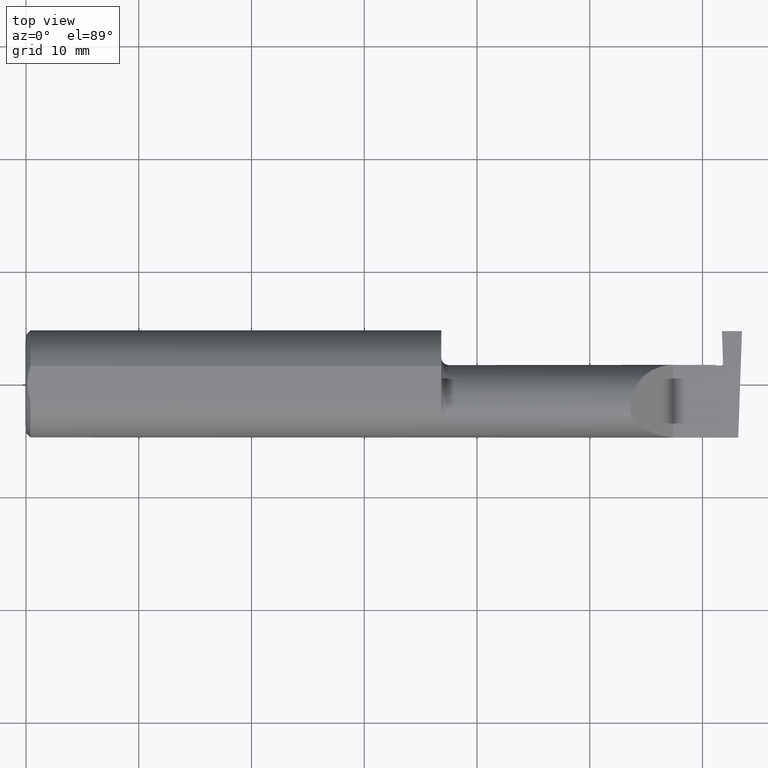
[diagram: clean part render]
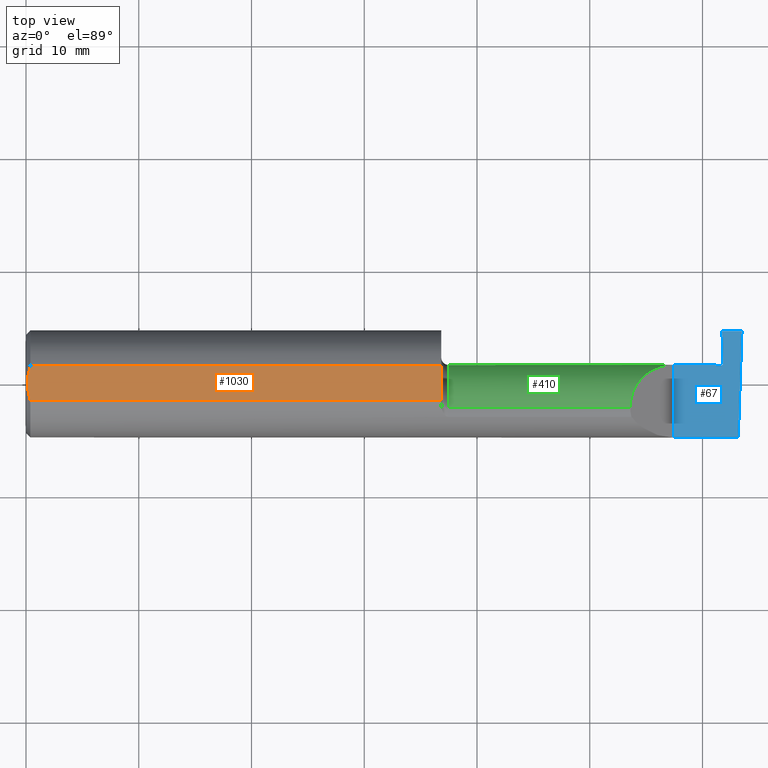
[diagram: same view with three faces highlighted in distinct colors, each labeled with its STEP entity id]
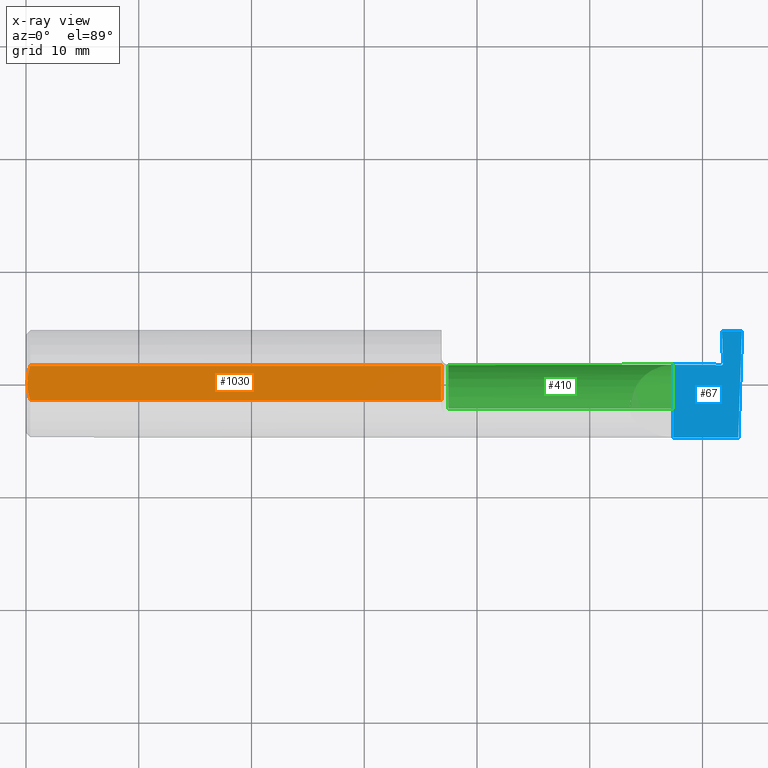
[diagram: x-ray of the same camera — body ghosted, the three highlighted faces saturated]
A machine part, top view with three faces highlighted in distinct colors.
The next image is the same camera in x-ray (body ghosted, the three faces saturated) — at least one of them is partly hidden behind the body in this view.
Their STEP definitions:

[orange] entity #1030 — the highlighted planar face has unit normal (0, -0, 1).
#24 = CARTESIAN_POINT ( 'NONE',  ( 0.009318557230853204490, -0.04061090184993776386, 0.1773499999999999799 ) ) ;
#25 = ORIENTED_EDGE ( 'NONE', *, *, #952, .T. ) ;
#38 = PLANE ( 'NONE',  #146 ) ;
#85 = CARTESIAN_POINT ( 'NONE',  ( 0.005896899252109314912, -0.02043863390046160924, 0.1773500000000000354 ) ) ;
#99 = B_SPLINE_CURVE_WITH_KNOTS ( 'NONE', 3,
 ( #615, #537, #462, #781, #701, #742 ),
 .UNSPECIFIED., .F., .F.,
 ( 4, 2, 4 ),
 ( 0.004207325536406422359, 0.004979129323161655095, 0.005750933109916887831 ),
 .UNSPECIFIED. ) ;
#103 = VERTEX_POINT ( 'NONE', #624 ) ;
#144 = VECTOR ( 'NONE', #442, 39.37007874015748143 ) ;
#146 = AXIS2_PLACEMENT_3D ( 'NONE', #458, #773, #358 ) ;
#179 = ORIENTED_EDGE ( 'NONE', *, *, #326, .T. ) ;
#185 = EDGE_CURVE ( 'NONE', #668, #869, #372, .T. ) ;
#203 = EDGE_CURVE ( 'NONE', #103, #323, #99, .T. ) ;
#222 = ORIENTED_EDGE ( 'NONE', *, *, #203, .T. ) ;
#283 = ORIENTED_EDGE ( 'NONE', *, *, #185, .T. ) ;
#294 = DIRECTION ( 'NONE',  ( 1.000000000000000000, 0.000000000000000000, 0.000000000000000000 ) ) ;
#323 = VERTEX_POINT ( 'NONE', #769 ) ;
#326 = EDGE_CURVE ( 'NONE', #869, #782, #776, .T. ) ;
#358 = DIRECTION ( 'NONE',  ( 1.000000000000000000, 0.000000000000000000, -0.000000000000000000 ) ) ;
#372 = LINE ( 'NONE', #695, #818 ) ;
#442 = DIRECTION ( 'NONE',  ( -0.000000000000000000, 1.000000000000000000, 0.000000000000000000 ) ) ;
#458 = CARTESIAN_POINT ( 'NONE',  ( 2.500000000000000000, -0.1873500000000000165, 0.1773499999999999799 ) ) ;
#460 = DIRECTION ( 'NONE',  ( -1.000000000000000000, -0.000000000000000000, -0.000000000000000000 ) ) ;
#462 = CARTESIAN_POINT ( 'NONE',  ( 0.009346310357820472939, 0.04072930668827419443, 0.1773500000000000354 ) ) ;
#507 = CARTESIAN_POINT ( 'NONE',  ( 1.450000000000000178, -0.06039039658753699025, 0.1773499999999999799 ) ) ;
#537 = CARTESIAN_POINT ( 'NONE',  ( 0.01185291896084217714, 0.05062716160312498437, 0.1773499999999999521 ) ) ;
#584 = CARTESIAN_POINT ( 'NONE',  ( 0.01186375298701897348, -0.05066077215909271098, 0.1773499999999999799 ) ) ;
#615 = CARTESIAN_POINT ( 'NONE',  ( 0.01499999999999756042, 0.06039039658754215278, 0.1773499999999999799 ) ) ;
#621 = ORIENTED_EDGE ( 'NONE', *, *, #741, .T. ) ;
#624 = CARTESIAN_POINT ( 'NONE',  ( 0.01499999999999756042, 0.06039039658754215278, 0.1773499999999999799 ) ) ;
#631 = VECTOR ( 'NONE', #460, 39.37007874015748143 ) ;
#664 = CARTESIAN_POINT ( 'NONE',  ( 0.004999999999999835305, 2.941982542510190671E-17, 0.1773499999999999799 ) ) ;
#668 = VERTEX_POINT ( 'NONE', #693 ) ;
#691 = FACE_OUTER_BOUND ( 'NONE', #816, .T. ) ;
#693 = CARTESIAN_POINT ( 'NONE',  ( 0.01499999999999999944, -0.06039039658753697637, 0.1773499999999999799 ) ) ;
#695 = CARTESIAN_POINT ( 'NONE',  ( 0.000000000000000000, -0.06039039658753697637, 0.1773499999999999799 ) ) ;
#701 = CARTESIAN_POINT ( 'NONE',  ( 0.004999999999999839642, 0.01027925662263861305, 0.1773499999999999799 ) ) ;
#741 = EDGE_CURVE ( 'NONE', #782, #103, #922, .T. ) ;
#742 = CARTESIAN_POINT ( 'NONE',  ( 0.004999999999999835305, 2.941982542510190671E-17, 0.1773499999999999799 ) ) ;
#747 = CARTESIAN_POINT ( 'NONE',  ( 0.004999999999999833571, -0.01026662907944655458, 0.1773499999999999521 ) ) ;
#769 = CARTESIAN_POINT ( 'NONE',  ( 0.004999999999999835305, 2.941982542510190671E-17, 0.1773499999999999799 ) ) ;
#773 = DIRECTION ( 'NONE',  ( 0.000000000000000000, -0.000000000000000000, 1.000000000000000000 ) ) ;
#776 = LINE ( 'NONE', #927, #144 ) ;
#781 = CARTESIAN_POINT ( 'NONE',  ( 0.005916828623699125177, 0.02060071390057613763, 0.1773499999999999799 ) ) ;
#782 = VERTEX_POINT ( 'NONE', #857 ) ;
#816 = EDGE_LOOP ( 'NONE', ( #283, #179, #621, #222, #25 ) ) ;
#818 = VECTOR ( 'NONE', #294, 39.37007874015748143 ) ;
#846 = B_SPLINE_CURVE_WITH_KNOTS ( 'NONE', 3,
 ( #664, #747, #85, #24, #584, #907 ),
 .UNSPECIFIED., .F., .F.,
 ( 4, 2, 4 ),
 ( 0.005750933109916887831, 0.006521788775031543001, 0.007292644440146199038 ),
 .UNSPECIFIED. ) ;
#857 = CARTESIAN_POINT ( 'NONE',  ( 1.450000000000000178, 0.06039039658754216666, 0.1773499999999999799 ) ) ;
#869 = VERTEX_POINT ( 'NONE', #507 ) ;
#907 = CARTESIAN_POINT ( 'NONE',  ( 0.01499999999999999944, -0.06039039658753697637, 0.1773499999999999799 ) ) ;
#922 = LINE ( 'NONE', #1003, #631 ) ;
#927 = CARTESIAN_POINT ( 'NONE',  ( 1.450000000000000178, -0.1873500000000000165, 0.1773499999999999799 ) ) ;
#952 = EDGE_CURVE ( 'NONE', #323, #668, #846, .T. ) ;
#1003 = CARTESIAN_POINT ( 'NONE',  ( 0.000000000000000000, 0.06039039658753697637, 0.1773499999999999799 ) ) ;
#1030 = ADVANCED_FACE ( 'NONE', ( #691 ), #38, .T. ) ;

[blue] entity #67 — the highlighted planar face has unit normal (-0, 0, -1).
#50 = CARTESIAN_POINT ( 'NONE',  ( 2.426941780145821070, 0.06464999999995924007, -4.790805175127219148E-11 ) ) ;
#53 = EDGE_CURVE ( 'NONE', #934, #789, #912, .T. ) ;
#67 = ADVANCED_FACE ( 'NONE', ( #227 ), #138, .F. ) ;
#76 = CARTESIAN_POINT ( 'NONE',  ( 2.429999999986550474, 0.1846500000000000363, -3.367778697655196529E-19 ) ) ;
#95 = DIRECTION ( 'NONE',  ( -0.000000000000000000, 1.000000000000000000, -0.000000000000000000 ) ) ;
#104 = CARTESIAN_POINT ( 'NONE',  ( 2.410000000002190834, 0.06465000000019342774, -3.137319047981862252E-11 ) ) ;
#112 = EDGE_CURVE ( 'NONE', #240, #1020, #466, .T. ) ;
#127 = EDGE_CURVE ( 'NONE', #901, #574, #147, .T. ) ;
#133 = B_SPLINE_CURVE_WITH_KNOTS ( 'NONE', 1,
 ( #729, #399 ),
 .UNSPECIFIED., .F., .F.,
 ( 2, 2 ),
 ( 6.214901063768139146E-15, 0.002865740601254403337 ),
 .UNSPECIFIED. ) ;
#138 = PLANE ( 'NONE',  #363 ) ;
#145 = LINE ( 'NONE', #716, #738 ) ;
#147 = LINE ( 'NONE', #472, #487 ) ;
#160 = EDGE_LOOP ( 'NONE', ( #402, #291, #592, #803, #263, #538, #990, #807, #727 ) ) ;
#169 = LINE ( 'NONE', #344, #314 ) ;
#174 = EDGE_CURVE ( 'NONE', #789, #302, #893, .T. ) ;
#221 = CARTESIAN_POINT ( 'NONE',  ( 2.431156691056176378, 0.06464999999995565960, -3.409149065540626643E-11 ) ) ;
#227 = FACE_OUTER_BOUND ( 'NONE', #160, .T. ) ;
#238 = EDGE_CURVE ( 'NONE', #1020, #759, #252, .T. ) ;
#240 = VERTEX_POINT ( 'NONE', #730 ) ;
#252 = LINE ( 'NONE', #971, #331 ) ;
#263 = ORIENTED_EDGE ( 'NONE', *, *, #53, .T. ) ;
#291 = ORIENTED_EDGE ( 'NONE', *, *, #112, .F. ) ;
#302 = VERTEX_POINT ( 'NONE', #694 ) ;
#306 = CARTESIAN_POINT ( 'NONE',  ( 2.500000000000000000, -0.2000000000000000111, 0.000000000000000000 ) ) ;
#314 = VECTOR ( 'NONE', #744, 39.37007874015748143 ) ;
#331 = VECTOR ( 'NONE', #333, 39.37007874015748143 ) ;
#333 = DIRECTION ( 'NONE',  ( -1.000000000000000000, -0.000000000000000000, -0.000000000000000000 ) ) ;
#341 = CARTESIAN_POINT ( 'NONE',  ( 2.433937515934081031, 0.07189429647679029811, -3.539777046606982435E-11 ) ) ;
#344 = CARTESIAN_POINT ( 'NONE',  ( 2.399999999999999911, 0.1846500000000000363, -3.367778697655196529E-19 ) ) ;
#363 = AXIS2_PLACEMENT_3D ( 'NONE', #306, #948, #1019 ) ;
#377 = CARTESIAN_POINT ( 'NONE',  ( 2.434084614202312480, 0.06768195317418604362, -3.470412738605554916E-11 ) ) ;
#384 = DIRECTION ( 'NONE',  ( 1.000000000000000000, 0.000000000000000000, 0.000000000000000000 ) ) ;
#399 = CARTESIAN_POINT ( 'NONE',  ( 2.433937515934081031, 0.07189429647679029811, -3.539777046606982435E-11 ) ) ;
#402 = ORIENTED_EDGE ( 'NONE', *, *, #238, .F. ) ;
#422 = CARTESIAN_POINT ( 'NONE',  ( 2.407999999999754337, 0.06665000000024534632, 1.279725924340410049E-17 ) ) ;
#452 = VERTEX_POINT ( 'NONE', #76 ) ;
#466 = LINE ( 'NONE', #542, #700 ) ;
#472 = CARTESIAN_POINT ( 'NONE',  ( 1.450000000000000178, 0.06665000000000002867, 1.285879139104721472E-16 ) ) ;
#487 = VECTOR ( 'NONE', #384, 39.37007874015748143 ) ;
#509 = EDGE_CURVE ( 'NONE', #452, #934, #133, .T. ) ;
#514 = CARTESIAN_POINT ( 'NONE',  ( 2.260000000000000231, 0.06665000000000002867, 2.939152317953647352E-17 ) ) ;
#538 = ORIENTED_EDGE ( 'NONE', *, *, #174, .T. ) ;
#541 = EDGE_CURVE ( 'NONE', #759, #901, #145, .T. ) ;
#542 = CARTESIAN_POINT ( 'NONE',  ( 2.500000000000000000, 0.1846500000000000363, 0.000000000000000000 ) ) ;
#558 = CARTESIAN_POINT ( 'NONE',  ( 2.410000000002190834, 0.06465000000019342774, -3.137319047981862252E-11 ) ) ;
#574 = VERTEX_POINT ( 'NONE', #662 ) ;
#592 = ORIENTED_EDGE ( 'NONE', *, *, #859, .F. ) ;
#593 = CARTESIAN_POINT ( 'NONE',  ( 2.487009473749072441, -0.1873499999999999055, 0.000000000000000000 ) ) ;
#662 = CARTESIAN_POINT ( 'NONE',  ( 2.407999999999754337, 0.06665000000024534632, 1.279725924340410049E-17 ) ) ;
#694 = CARTESIAN_POINT ( 'NONE',  ( 2.410000000002190834, 0.06465000000019342774, -3.137319047981862252E-11 ) ) ;
#700 = VECTOR ( 'NONE', #867, 39.37007874015748854 ) ;
#716 = CARTESIAN_POINT ( 'NONE',  ( 2.260000000000000231, -0.2000000000000000111, 2.939152317953647352E-17 ) ) ;
#727 = ORIENTED_EDGE ( 'NONE', *, *, #541, .F. ) ;
#729 = CARTESIAN_POINT ( 'NONE',  ( 2.429999999986550474, 0.1846500000000000363, -3.367778697655196529E-19 ) ) ;
#730 = CARTESIAN_POINT ( 'NONE',  ( 2.500000000000000000, 0.1846500000000000363, 0.000000000000000000 ) ) ;
#738 = VECTOR ( 'NONE', #95, 39.37007874015748143 ) ;
#744 = DIRECTION ( 'NONE',  ( 1.000000000000000000, -0.000000000000000000, -0.000000000000000000 ) ) ;
#759 = VERTEX_POINT ( 'NONE', #767 ) ;
#767 = CARTESIAN_POINT ( 'NONE',  ( 2.260000000000000231, -0.1873499999999999888, 2.939152317953647352E-17 ) ) ;
#789 = VERTEX_POINT ( 'NONE', #50 ) ;
#803 = ORIENTED_EDGE ( 'NONE', *, *, #509, .T. ) ;
#807 = ORIENTED_EDGE ( 'NONE', *, *, #127, .F. ) ;
#859 = EDGE_CURVE ( 'NONE', #452, #240, #169, .T. ) ;
#860 = CARTESIAN_POINT ( 'NONE',  ( 2.433937515934081031, 0.07189429647679029811, -3.539777046606982435E-11 ) ) ;
#867 = DIRECTION ( 'NONE',  ( -0.03489949670249478664, -0.9993908270190959842, 0.000000000000000000 ) ) ;
#893 = B_SPLINE_CURVE_WITH_KNOTS ( 'NONE', 1,
 ( #932, #558 ),
 .UNSPECIFIED., .F., .F.,
 ( 2, 2 ),
 ( 0.000000000000000000, 0.0004303212156482119632 ),
 .UNSPECIFIED. ) ;
#901 = VERTEX_POINT ( 'NONE', #514 ) ;
#912 =( BOUNDED_CURVE ( )  B_SPLINE_CURVE ( 3, ( #860, #377, #221, #1011 ),
 .UNSPECIFIED., .F., .F. ) 
 B_SPLINE_CURVE_WITH_KNOTS ( ( 4, 4 ),
 ( 1.734723475976806902E-18, 0.0002839584297203088777 ),
 .UNSPECIFIED. ) 
 CURVE ( )  GEOMETRIC_REPRESENTATION_ITEM ( )  RATIONAL_B_SPLINE_CURVE ( ( 1.000000000000000000, 0.7964389136393328350, 0.7964389136393328350, 1.000000000000000000 ) ) 
 REPRESENTATION_ITEM ( '' )  );
#932 = CARTESIAN_POINT ( 'NONE',  ( 2.426941780145821070, 0.06464999999995924007, -4.790805175127219148E-11 ) ) ;
#934 = VERTEX_POINT ( 'NONE', #341 ) ;
#936 = EDGE_CURVE ( 'NONE', #302, #574, #1010, .T. ) ;
#948 = DIRECTION ( 'NONE',  ( -1.224646799147353700E-16, 0.000000000000000000, -1.000000000000000000 ) ) ;
#971 = CARTESIAN_POINT ( 'NONE',  ( 3.749399456654646757E-32, -0.1873499999999999888, 3.061616997868384127E-16 ) ) ;
#990 = ORIENTED_EDGE ( 'NONE', *, *, #936, .T. ) ;
#1010 = B_SPLINE_CURVE_WITH_KNOTS ( 'NONE', 1,
 ( #104, #422 ),
 .UNSPECIFIED., .F., .F.,
 ( 2, 2 ),
 ( 0.000000000000000000, 7.184204901324649922E-05 ),
 .UNSPECIFIED. ) ;
#1011 = CARTESIAN_POINT ( 'NONE',  ( 2.426941780145821070, 0.06464999999995924007, -4.790805175127219148E-11 ) ) ;
#1019 = DIRECTION ( 'NONE',  ( -1.000000000000000000, 0.000000000000000000, 1.224646799147353700E-16 ) ) ;
#1020 = VERTEX_POINT ( 'NONE', #593 ) ;

[green] entity #410 — the highlighted cylindrical surface (partial cylindrical patch) has radius 3.81 mm, axis along (-1, -0, -0).
#18 = LINE ( 'NONE', #569, #467 ) ;
#28 = CARTESIAN_POINT ( 'NONE',  ( 2.413802602719911317, -0.08335000000000178377, -0.1499999999999999112 ) ) ;
#32 = CARTESIAN_POINT ( 'NONE',  ( 2.110000000000001208, -0.08334999999999996578, 0.1499999999999999944 ) ) ;
#35 = EDGE_CURVE ( 'NONE', #601, #697, #280, .T. ) ;
#43 = ORIENTED_EDGE ( 'NONE', *, *, #127, .T. ) ;
#44 = CARTESIAN_POINT ( 'NONE',  ( 1.450000000000000178, -0.08334999999999996578, 0.1499999999999999944 ) ) ;
#54 = LINE ( 'NONE', #44, #651 ) ;
#74 = VERTEX_POINT ( 'NONE', #552 ) ;
#77 = AXIS2_PLACEMENT_3D ( 'NONE', #946, #330, #805 ) ;
#105 = CARTESIAN_POINT ( 'NONE',  ( 2.412625962244845823, 0.008070055291017310534, -0.1193229060453666474 ) ) ;
#110 = CARTESIAN_POINT ( 'NONE',  ( 1.474999999999999867, -0.08334999999999996578, 0.1499999999999999944 ) ) ;
#127 = EDGE_CURVE ( 'NONE', #901, #574, #147, .T. ) ;
#134 = ORIENTED_EDGE ( 'NONE', *, *, #35, .F. ) ;
#147 = LINE ( 'NONE', #472, #487 ) ;
#172 = ORIENTED_EDGE ( 'NONE', *, *, #626, .T. ) ;
#181 = CARTESIAN_POINT ( 'NONE',  ( 2.409485634308034641, 0.06268191366171214918, -0.03944647635246777834 ) ) ;
#184 = CARTESIAN_POINT ( 'NONE',  ( 2.411501686875713091, 0.03584078931533318108, -0.09159665397138957998 ) ) ;
#189 = CARTESIAN_POINT ( 'NONE',  ( 2.413047292675042144, -0.008191925550517941204, -0.1301800532400036181 ) ) ;
#214 = EDGE_CURVE ( 'NONE', #74, #697, #18, .T. ) ;
#259 = CARTESIAN_POINT ( 'NONE',  ( 2.413601314554065791, -0.04414772996834304131, -0.1461247714935418607 ) ) ;
#265 = CARTESIAN_POINT ( 'NONE',  ( 2.260000000000000231, 0.06665000000000002867, 2.939152317953647352E-17 ) ) ;
#280 = CIRCLE ( 'NONE', #870, 0.1499999999999999944 ) ;
#296 = DIRECTION ( 'NONE',  ( -1.000000000000000000, -0.000000000000000000, -0.000000000000000000 ) ) ;
#321 = CYLINDRICAL_SURFACE ( 'NONE', #77, 0.1499999999999999944 ) ;
#330 = DIRECTION ( 'NONE',  ( -1.000000000000000000, -0.000000000000000000, -0.000000000000000000 ) ) ;
#355 = CARTESIAN_POINT ( 'NONE',  ( 2.172132034355964691, 0.06665000000000001479, 0.08786796564403576149 ) ) ;
#384 = DIRECTION ( 'NONE',  ( 1.000000000000000000, 0.000000000000000000, 0.000000000000000000 ) ) ;
#410 = ADVANCED_FACE ( 'NONE', ( #798 ), #321, .T. ) ;
#421 = VERTEX_POINT ( 'NONE', #877 ) ;
#455 = B_SPLINE_CURVE_WITH_KNOTS ( 'NONE', 3,
 ( #752, #745, #181, #827, #757, #184, #911, #895, #105, #189, #512, #259, #516, #28 ),
 .UNSPECIFIED., .F., .F.,
 ( 4, 2, 2, 2, 2, 2, 4 ),
 ( 0.000000000000000000, 0.001502809142013588955, 0.002254213713020383758, 0.003005618284027177910, 0.003757022855033972063, 0.004508427426040766649, 0.006011236568054354086 ),
 .UNSPECIFIED. ) ;
#467 = VECTOR ( 'NONE', #964, 39.37007874015748143 ) ;
#472 = CARTESIAN_POINT ( 'NONE',  ( 1.450000000000000178, 0.06665000000000002867, 1.285879139104721472E-16 ) ) ;
#487 = VECTOR ( 'NONE', #384, 39.37007874015748143 ) ;
#512 = CARTESIAN_POINT ( 'NONE',  ( 2.413195127558371400, -0.01680788041497433688, -0.1347941505631858605 ) ) ;
#514 = CARTESIAN_POINT ( 'NONE',  ( 2.260000000000000231, 0.06665000000000002867, 2.939152317953647352E-17 ) ) ;
#516 = CARTESIAN_POINT ( 'NONE',  ( 2.413823073211319947, -0.06360486604316392678, -0.1500000000000002442 ) ) ;
#552 = CARTESIAN_POINT ( 'NONE',  ( 2.413802602719911317, -0.08335000000000178377, -0.1499999999999999112 ) ) ;
#569 = CARTESIAN_POINT ( 'NONE',  ( 1.450000000000000178, -0.08334999999999995191, -0.1499999999999999944 ) ) ;
#574 = VERTEX_POINT ( 'NONE', #662 ) ;
#578 = ORIENTED_EDGE ( 'NONE', *, *, #706, .F. ) ;
#590 = EDGE_CURVE ( 'NONE', #574, #74, #455, .T. ) ;
#601 = VERTEX_POINT ( 'NONE', #110 ) ;
#617 = CARTESIAN_POINT ( 'NONE',  ( 1.474999999999999867, -0.08334999999999995191, -0.1499999999999999944 ) ) ;
#626 = EDGE_CURVE ( 'NONE', #421, #901, #979, .T. ) ;
#651 = VECTOR ( 'NONE', #296, 39.37007874015748143 ) ;
#662 = CARTESIAN_POINT ( 'NONE',  ( 2.407999999999754337, 0.06665000000024534632, 1.279725924340410049E-17 ) ) ;
#684 = DIRECTION ( 'NONE',  ( 0.000000000000000000, 0.000000000000000000, 1.000000000000000000 ) ) ;
#692 = EDGE_LOOP ( 'NONE', ( #766, #862, #134, #578, #172, #43 ) ) ;
#697 = VERTEX_POINT ( 'NONE', #617 ) ;
#706 = EDGE_CURVE ( 'NONE', #421, #601, #54, .T. ) ;
#745 = CARTESIAN_POINT ( 'NONE',  ( 2.408759751994090426, 0.06664999999581025514, -0.01979751783287424932 ) ) ;
#752 = CARTESIAN_POINT ( 'NONE',  ( 2.407999999999754337, 0.06665000000024534632, 1.279725924340410049E-17 ) ) ;
#757 = CARTESIAN_POINT ( 'NONE',  ( 2.410917538558686957, 0.04676325438225997083, -0.07527902968572276754 ) ) ;
#766 = ORIENTED_EDGE ( 'NONE', *, *, #590, .T. ) ;
#798 = FACE_OUTER_BOUND ( 'NONE', #692, .T. ) ;
#805 = DIRECTION ( 'NONE',  ( 0.000000000000000000, 0.000000000000000000, 1.000000000000000000 ) ) ;
#827 = CARTESIAN_POINT ( 'NONE',  ( 2.410584139051507702, 0.05145648356188781830, -0.06650224105818068610 ) ) ;
#833 = CARTESIAN_POINT ( 'NONE',  ( 1.474999999999999867, -0.08334999999999996578, 0.000000000000000000 ) ) ;
#862 = ORIENTED_EDGE ( 'NONE', *, *, #214, .T. ) ;
#870 = AXIS2_PLACEMENT_3D ( 'NONE', #833, #920, #684 ) ;
#877 = CARTESIAN_POINT ( 'NONE',  ( 2.110000000000001208, -0.08334999999999996578, 0.1499999999999999944 ) ) ;
#895 = CARTESIAN_POINT ( 'NONE',  ( 2.412340858994673098, 0.01578456831385096487, -0.1129971905242391633 ) ) ;
#901 = VERTEX_POINT ( 'NONE', #514 ) ;
#911 = CARTESIAN_POINT ( 'NONE',  ( 2.411778875654625676, 0.02964324926135781038, -0.09913906052866065799 ) ) ;
#920 = DIRECTION ( 'NONE',  ( -1.000000000000000000, -0.000000000000000000, -0.000000000000000000 ) ) ;
#946 = CARTESIAN_POINT ( 'NONE',  ( 1.450000000000000178, -0.08334999999999996578, 0.000000000000000000 ) ) ;
#964 = DIRECTION ( 'NONE',  ( -1.000000000000000000, -0.000000000000000000, -0.000000000000000000 ) ) ;
#979 =( BOUNDED_CURVE ( )  B_SPLINE_CURVE ( 3, ( #32, #983, #355, #265 ),
 .UNSPECIFIED., .F., .T. ) 
 B_SPLINE_CURVE_WITH_KNOTS ( ( 4, 4 ),
 ( 0.000000000000000000, 1.570796326794896558 ),
 .UNSPECIFIED. ) 
 CURVE ( )  GEOMETRIC_REPRESENTATION_ITEM ( )  RATIONAL_B_SPLINE_CURVE ( ( 1.000000000000000000, 0.8047378541243649375, 0.8047378541243649375, 1.000000000000000000 ) ) 
 REPRESENTATION_ITEM ( '' )  );
#983 = CARTESIAN_POINT ( 'NONE',  ( 2.110000000000001208, 0.004517965644035767080, 0.1500000000000000222 ) ) ;